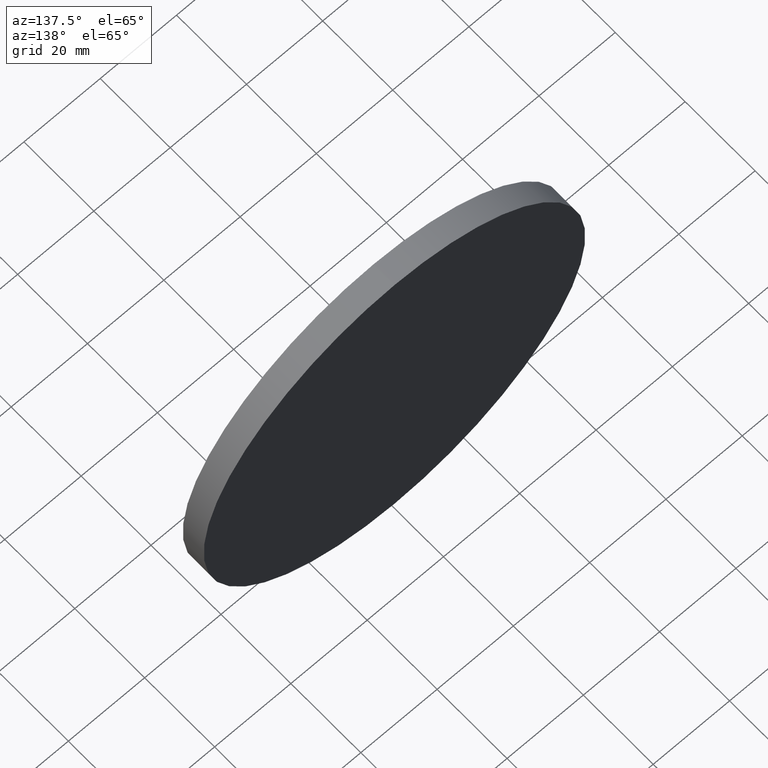
[diagram: clean part render]
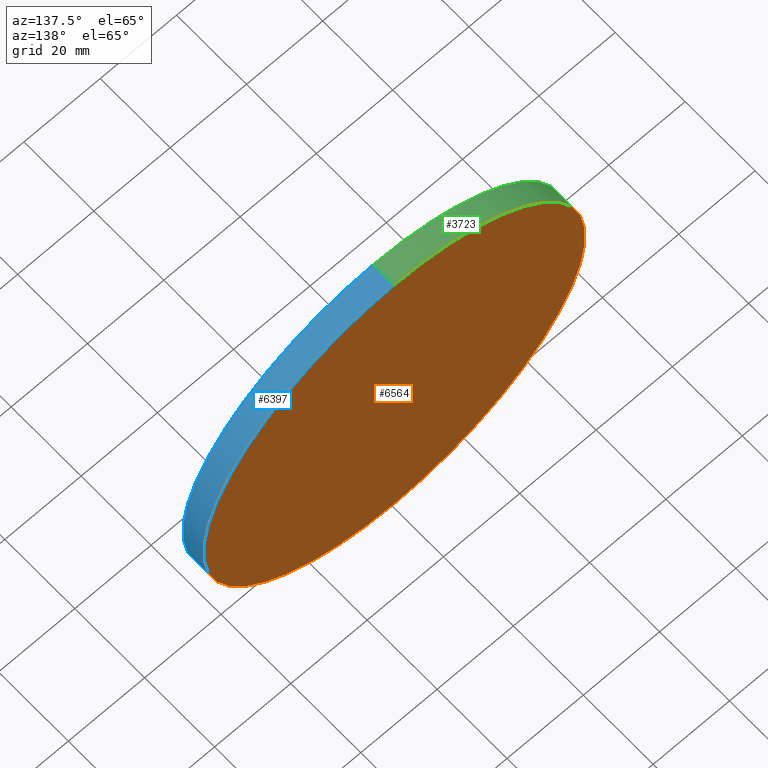
[diagram: same view with three faces highlighted in distinct colors, each labeled with its STEP entity id]
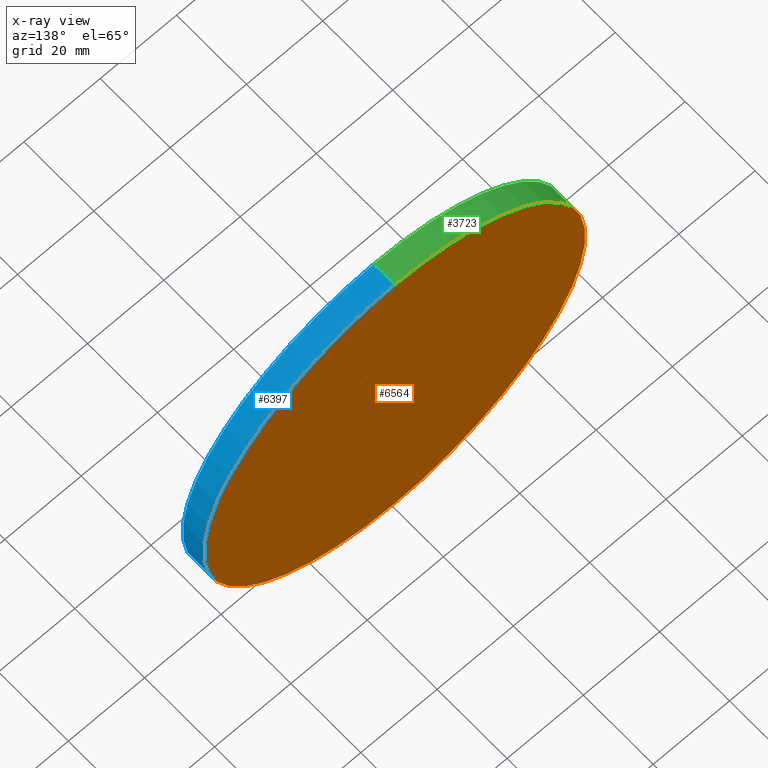
[diagram: x-ray of the same camera — body ghosted, the three highlighted faces saturated]
A machine part, auxiliary view with three faces highlighted in distinct colors.
The next image is the same camera in x-ray (body ghosted, the three faces saturated) — at least one of them is partly hidden behind the body in this view.
Their STEP definitions:

[orange] entity #6564 — the highlighted planar face has unit normal (0, 1, 0).
#263 = CARTESIAN_POINT ( 'NONE',  ( 6.123233995736766100E-015, 6.000000000000000000, 50.00000000000000000 ) ) ;
#390 = PLANE ( 'NONE',  #5876 ) ;
#541 = EDGE_CURVE ( 'NONE', #11321, #2970, #6436, .T. ) ;
#1140 = ORIENTED_EDGE ( 'NONE', *, *, #541, .T. ) ;
#1522 = EDGE_LOOP ( 'NONE', ( #1140, #3378 ) ) ;
#2970 = VERTEX_POINT ( 'NONE', #263 ) ;
#3378 = ORIENTED_EDGE ( 'NONE', *, *, #11422, .T. ) ;
#3659 = AXIS2_PLACEMENT_3D ( 'NONE', #7704, #5926, #5762 ) ;
#5380 = CARTESIAN_POINT ( 'NONE',  ( 0.0000000000000000000, 6.000000000000000000, 0.0000000000000000000 ) ) ;
#5762 = DIRECTION ( 'NONE',  ( 0.0000000000000000000, 0.0000000000000000000, 1.000000000000000000 ) ) ;
#5876 = AXIS2_PLACEMENT_3D ( 'NONE', #8742, #9692, #6810 ) ;
#5926 = DIRECTION ( 'NONE',  ( 0.0000000000000000000, 1.000000000000000000, 0.0000000000000000000 ) ) ;
#6077 = CARTESIAN_POINT ( 'NONE',  ( 0.0000000000000000000, 6.000000000000000000, -50.00000000000000000 ) ) ;
#6323 = DIRECTION ( 'NONE',  ( 0.0000000000000000000, 0.0000000000000000000, 1.000000000000000000 ) ) ;
#6436 = CIRCLE ( 'NONE', #9150, 50.00000000000000000 ) ;
#6564 = ADVANCED_FACE ( 'NONE', ( #9778 ), #390, .T. ) ;
#6810 = DIRECTION ( 'NONE',  ( 0.0000000000000000000, -0.0000000000000000000, 1.000000000000000000 ) ) ;
#7704 = CARTESIAN_POINT ( 'NONE',  ( 0.0000000000000000000, 6.000000000000000000, 0.0000000000000000000 ) ) ;
#8742 = CARTESIAN_POINT ( 'NONE',  ( 0.0000000000000000000, 6.000000000000000000, 0.0000000000000000000 ) ) ;
#9150 = AXIS2_PLACEMENT_3D ( 'NONE', #5380, #11885, #6323 ) ;
#9692 = DIRECTION ( 'NONE',  ( 0.0000000000000000000, 1.000000000000000000, 0.0000000000000000000 ) ) ;
#9778 = FACE_OUTER_BOUND ( 'NONE', #1522, .T. ) ;
#9911 = CIRCLE ( 'NONE', #3659, 50.00000000000000000 ) ;
#11321 = VERTEX_POINT ( 'NONE', #6077 ) ;
#11422 = EDGE_CURVE ( 'NONE', #2970, #11321, #9911, .T. ) ;
#11885 = DIRECTION ( 'NONE',  ( 0.0000000000000000000, 1.000000000000000000, 0.0000000000000000000 ) ) ;

[blue] entity #6397 — the highlighted cylindrical surface (partial cylindrical patch) has radius 50 mm, axis along (-0, -1, -0).
#24 = CARTESIAN_POINT ( 'NONE',  ( 0.0000000000000000000, 0.0000000000000000000, -50.00000000000000000 ) ) ;
#261 = LINE ( 'NONE', #6380, #3492 ) ;
#263 = CARTESIAN_POINT ( 'NONE',  ( 6.123233995736766100E-015, 6.000000000000000000, 50.00000000000000000 ) ) ;
#599 = ORIENTED_EDGE ( 'NONE', *, *, #3070, .T. ) ;
#1116 = EDGE_CURVE ( 'NONE', #5773, #11715, #10785, .T. ) ;
#1255 = CARTESIAN_POINT ( 'NONE',  ( 6.123233995736766100E-015, 0.0000000000000000000, 50.00000000000000000 ) ) ;
#1727 = DIRECTION ( 'NONE',  ( -0.0000000000000000000, -1.000000000000000000, -0.0000000000000000000 ) ) ;
#2444 = CARTESIAN_POINT ( 'NONE',  ( 0.0000000000000000000, 0.0000000000000000000, 0.0000000000000000000 ) ) ;
#2970 = VERTEX_POINT ( 'NONE', #263 ) ;
#3070 = EDGE_CURVE ( 'NONE', #2970, #5773, #261, .T. ) ;
#3095 = CYLINDRICAL_SURFACE ( 'NONE', #7972, 50.00000000000000000 ) ;
#3492 = VECTOR ( 'NONE', #1727, 1000.000000000000000 ) ;
#3545 = DIRECTION ( 'NONE',  ( 0.0000000000000000000, 0.0000000000000000000, -1.000000000000000000 ) ) ;
#3659 = AXIS2_PLACEMENT_3D ( 'NONE', #7704, #5926, #5762 ) ;
#3915 = DIRECTION ( 'NONE',  ( 0.0000000000000000000, 1.000000000000000000, 0.0000000000000000000 ) ) ;
#4249 = LINE ( 'NONE', #6507, #9614 ) ;
#5309 = EDGE_LOOP ( 'NONE', ( #9817, #599, #11374, #5861 ) ) ;
#5762 = DIRECTION ( 'NONE',  ( 0.0000000000000000000, 0.0000000000000000000, 1.000000000000000000 ) ) ;
#5773 = VERTEX_POINT ( 'NONE', #1255 ) ;
#5861 = ORIENTED_EDGE ( 'NONE', *, *, #10076, .F. ) ;
#5926 = DIRECTION ( 'NONE',  ( 0.0000000000000000000, 1.000000000000000000, 0.0000000000000000000 ) ) ;
#6077 = CARTESIAN_POINT ( 'NONE',  ( 0.0000000000000000000, 6.000000000000000000, -50.00000000000000000 ) ) ;
#6114 = DIRECTION ( 'NONE',  ( 0.0000000000000000000, 0.0000000000000000000, 1.000000000000000000 ) ) ;
#6380 = CARTESIAN_POINT ( 'NONE',  ( 6.123233995736766100E-015, 6.000000000000000000, 50.00000000000000000 ) ) ;
#6397 = ADVANCED_FACE ( 'NONE', ( #10498 ), #3095, .T. ) ;
#6507 = CARTESIAN_POINT ( 'NONE',  ( 0.0000000000000000000, 6.000000000000000000, -50.00000000000000000 ) ) ;
#7663 = AXIS2_PLACEMENT_3D ( 'NONE', #2444, #3915, #6114 ) ;
#7704 = CARTESIAN_POINT ( 'NONE',  ( 0.0000000000000000000, 6.000000000000000000, 0.0000000000000000000 ) ) ;
#7972 = AXIS2_PLACEMENT_3D ( 'NONE', #9875, #8207, #3545 ) ;
#8207 = DIRECTION ( 'NONE',  ( -0.0000000000000000000, -1.000000000000000000, -0.0000000000000000000 ) ) ;
#8361 = DIRECTION ( 'NONE',  ( -0.0000000000000000000, -1.000000000000000000, -0.0000000000000000000 ) ) ;
#9614 = VECTOR ( 'NONE', #8361, 1000.000000000000000 ) ;
#9817 = ORIENTED_EDGE ( 'NONE', *, *, #11422, .F. ) ;
#9875 = CARTESIAN_POINT ( 'NONE',  ( 0.0000000000000000000, 6.000000000000000000, 0.0000000000000000000 ) ) ;
#9911 = CIRCLE ( 'NONE', #3659, 50.00000000000000000 ) ;
#10076 = EDGE_CURVE ( 'NONE', #11321, #11715, #4249, .T. ) ;
#10498 = FACE_OUTER_BOUND ( 'NONE', #5309, .T. ) ;
#10785 = CIRCLE ( 'NONE', #7663, 50.00000000000000000 ) ;
#11321 = VERTEX_POINT ( 'NONE', #6077 ) ;
#11374 = ORIENTED_EDGE ( 'NONE', *, *, #1116, .T. ) ;
#11422 = EDGE_CURVE ( 'NONE', #2970, #11321, #9911, .T. ) ;
#11715 = VERTEX_POINT ( 'NONE', #24 ) ;

[green] entity #3723 — the highlighted cylindrical surface (partial cylindrical patch) has radius 50 mm, axis along (-0, -1, -0).
#24 = CARTESIAN_POINT ( 'NONE',  ( 0.0000000000000000000, 0.0000000000000000000, -50.00000000000000000 ) ) ;
#158 = CIRCLE ( 'NONE', #1266, 50.00000000000000000 ) ;
#261 = LINE ( 'NONE', #6380, #3492 ) ;
#263 = CARTESIAN_POINT ( 'NONE',  ( 6.123233995736766100E-015, 6.000000000000000000, 50.00000000000000000 ) ) ;
#343 = ORIENTED_EDGE ( 'NONE', *, *, #3070, .F. ) ;
#541 = EDGE_CURVE ( 'NONE', #11321, #2970, #6436, .T. ) ;
#1255 = CARTESIAN_POINT ( 'NONE',  ( 6.123233995736766100E-015, 0.0000000000000000000, 50.00000000000000000 ) ) ;
#1266 = AXIS2_PLACEMENT_3D ( 'NONE', #1601, #11094, #3781 ) ;
#1601 = CARTESIAN_POINT ( 'NONE',  ( 0.0000000000000000000, 0.0000000000000000000, 0.0000000000000000000 ) ) ;
#1727 = DIRECTION ( 'NONE',  ( -0.0000000000000000000, -1.000000000000000000, -0.0000000000000000000 ) ) ;
#2039 = DIRECTION ( 'NONE',  ( 0.0000000000000000000, 0.0000000000000000000, -1.000000000000000000 ) ) ;
#2314 = FACE_OUTER_BOUND ( 'NONE', #7894, .T. ) ;
#2422 = ORIENTED_EDGE ( 'NONE', *, *, #541, .F. ) ;
#2970 = VERTEX_POINT ( 'NONE', #263 ) ;
#3070 = EDGE_CURVE ( 'NONE', #2970, #5773, #261, .T. ) ;
#3492 = VECTOR ( 'NONE', #1727, 1000.000000000000000 ) ;
#3723 = ADVANCED_FACE ( 'NONE', ( #2314 ), #8391, .T. ) ;
#3781 = DIRECTION ( 'NONE',  ( 0.0000000000000000000, 0.0000000000000000000, 1.000000000000000000 ) ) ;
#4249 = LINE ( 'NONE', #6507, #9614 ) ;
#4650 = AXIS2_PLACEMENT_3D ( 'NONE', #8733, #11595, #2039 ) ;
#5153 = ORIENTED_EDGE ( 'NONE', *, *, #10076, .T. ) ;
#5380 = CARTESIAN_POINT ( 'NONE',  ( 0.0000000000000000000, 6.000000000000000000, 0.0000000000000000000 ) ) ;
#5773 = VERTEX_POINT ( 'NONE', #1255 ) ;
#6077 = CARTESIAN_POINT ( 'NONE',  ( 0.0000000000000000000, 6.000000000000000000, -50.00000000000000000 ) ) ;
#6323 = DIRECTION ( 'NONE',  ( 0.0000000000000000000, 0.0000000000000000000, 1.000000000000000000 ) ) ;
#6380 = CARTESIAN_POINT ( 'NONE',  ( 6.123233995736766100E-015, 6.000000000000000000, 50.00000000000000000 ) ) ;
#6436 = CIRCLE ( 'NONE', #9150, 50.00000000000000000 ) ;
#6507 = CARTESIAN_POINT ( 'NONE',  ( 0.0000000000000000000, 6.000000000000000000, -50.00000000000000000 ) ) ;
#7894 = EDGE_LOOP ( 'NONE', ( #343, #2422, #5153, #11945 ) ) ;
#8361 = DIRECTION ( 'NONE',  ( -0.0000000000000000000, -1.000000000000000000, -0.0000000000000000000 ) ) ;
#8391 = CYLINDRICAL_SURFACE ( 'NONE', #4650, 50.00000000000000000 ) ;
#8733 = CARTESIAN_POINT ( 'NONE',  ( 0.0000000000000000000, 6.000000000000000000, 0.0000000000000000000 ) ) ;
#9150 = AXIS2_PLACEMENT_3D ( 'NONE', #5380, #11885, #6323 ) ;
#9614 = VECTOR ( 'NONE', #8361, 1000.000000000000000 ) ;
#9944 = EDGE_CURVE ( 'NONE', #11715, #5773, #158, .T. ) ;
#10076 = EDGE_CURVE ( 'NONE', #11321, #11715, #4249, .T. ) ;
#11094 = DIRECTION ( 'NONE',  ( 0.0000000000000000000, 1.000000000000000000, 0.0000000000000000000 ) ) ;
#11321 = VERTEX_POINT ( 'NONE', #6077 ) ;
#11595 = DIRECTION ( 'NONE',  ( -0.0000000000000000000, -1.000000000000000000, -0.0000000000000000000 ) ) ;
#11715 = VERTEX_POINT ( 'NONE', #24 ) ;
#11885 = DIRECTION ( 'NONE',  ( 0.0000000000000000000, 1.000000000000000000, 0.0000000000000000000 ) ) ;
#11945 = ORIENTED_EDGE ( 'NONE', *, *, #9944, .T. ) ;